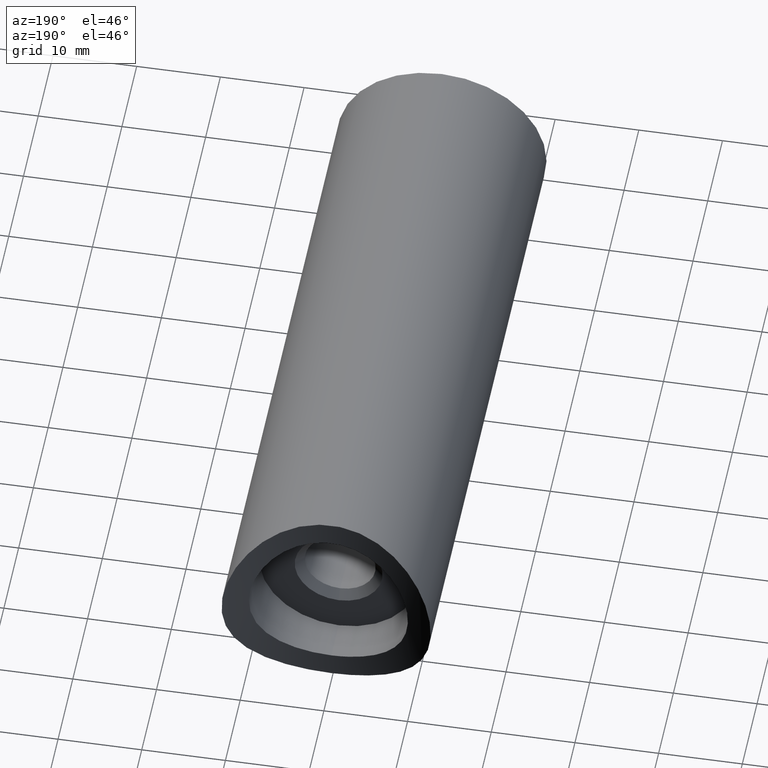
[diagram: clean part render]
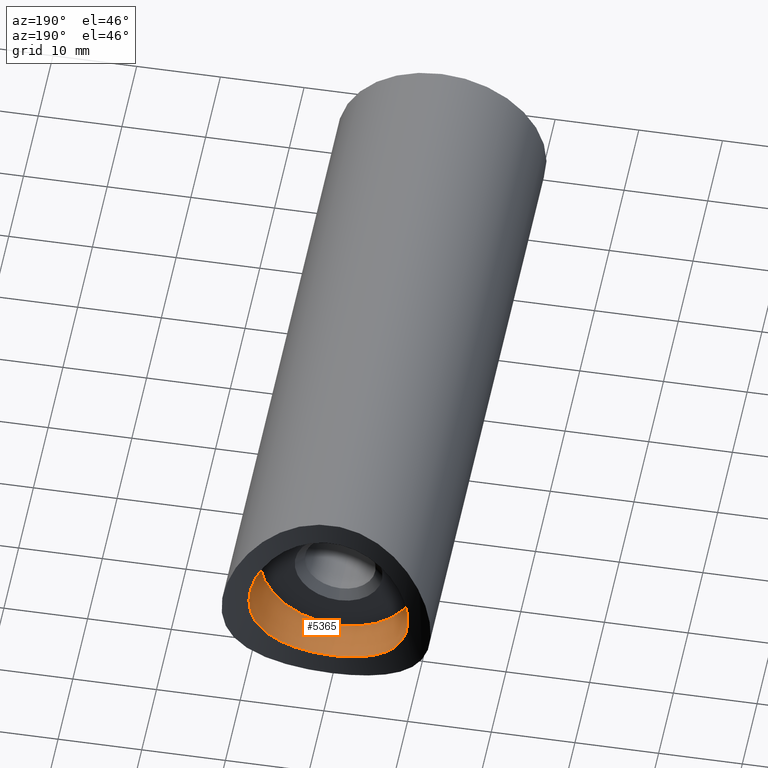
[diagram: same view with one face highlighted and labeled with its STEP entity id]
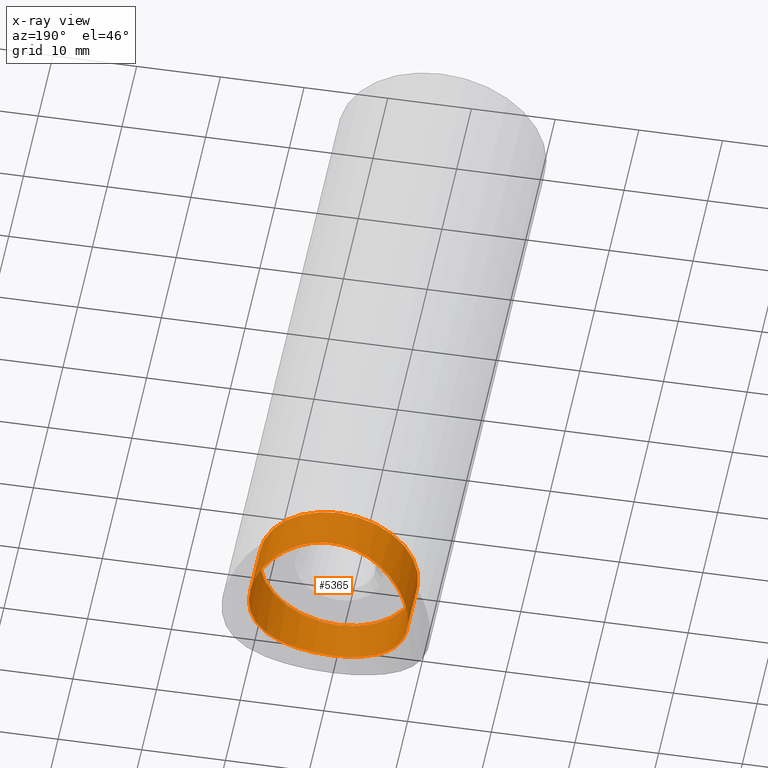
[diagram: x-ray of the same camera — body ghosted, the highlighted face saturated]
A machine part, auxiliary view. The second image highlights one B-rep face of the part: STEP entity #5365.
The next image is the same camera in x-ray: the body ghosted, the highlighted face saturated — about 0% of this face is hidden behind the body in this view.
In plain terms, the highlighted cylindrical surface (bore or boss wall) has radius 9.5 mm, axis along (-0, -1, -0).
Its self-contained STEP definition (entity closure, byte-faithful):
#36 = CARTESIAN_POINT ( 'NONE',  ( 9.193056664637765607, 76.81778522380197671, 2.475342058951142121 ) ) ;
#81 = CARTESIAN_POINT ( 'NONE',  ( -8.510542519066493838, 76.54872143713436117, 4.232847530208183606 ) ) ;
#130 = CARTESIAN_POINT ( 'NONE',  ( 9.499214769619728216, 76.94667998977251955, -0.6384542957926189199 ) ) ;
#151 = ORIENTED_EDGE ( 'NONE', *, *, #14870, .T. ) ;
#189 = CARTESIAN_POINT ( 'NONE',  ( -4.218238365120572375, 75.36961082937598633, 8.517827586905390547 ) ) ;
#292 = CARTESIAN_POINT ( 'NONE',  ( -1.572090179147043632, 75.04927085023612676, -9.374213592972790110 ) ) ;
#685 = CIRCLE ( 'NONE', #8659, 9.500000000000000000 ) ;
#1136 = CARTESIAN_POINT ( 'NONE',  ( 9.437043816654821171, 76.91978093354752843, -1.258921852254846430 ) ) ;
#1182 = CARTESIAN_POINT ( 'NONE',  ( -8.216106106290522959, 76.44003022689670956, 4.779323449297377735 ) ) ;
#1237 = CARTESIAN_POINT ( 'NONE',  ( 3.077021658739412580, 75.19492368750546518, -8.993352366064405246 ) ) ;
#1290 = CARTESIAN_POINT ( 'NONE',  ( 9.376693620057871215, 76.89456204277402662, 1.557247264431473432 ) ) ;
#1339 = CARTESIAN_POINT ( 'NONE',  ( 3.093813615829786645, 75.19203433111398738, 9.003380680992760787 ) ) ;
#1386 = CARTESIAN_POINT ( 'NONE',  ( -9.500662680517631742, 76.94729950751319336, -0.6160530832159377690 ) ) ;
#1495 = CARTESIAN_POINT ( 'NONE',  ( -0.6353278872126894017, 75.00631901483400554, -9.483969120928300356 ) ) ;
#2044 = CARTESIAN_POINT ( 'NONE',  ( 2.174000736269224632, 75.09609725218493281, -9.253158087516537122 ) ) ;
#2297 = CARTESIAN_POINT ( 'NONE',  ( 8.884871832431230132, 76.69342269747139085, -3.377035680665607220 ) ) ;
#2343 = CARTESIAN_POINT ( 'NONE',  ( 6.502903001252344772, 75.89090259929585613, -6.932254495519477366 ) ) ;
#2395 = CARTESIAN_POINT ( 'NONE',  ( 8.527852376057261097, 76.55434819827355852, -4.231666778120470873 ) ) ;
#2442 = CARTESIAN_POINT ( 'NONE',  ( -3.934444486296392540, 75.32087562434655581, 8.652572895259925900 ) ) ;
#2502 = CARTESIAN_POINT ( 'NONE',  ( 9.251696904950398093, 76.84230876325581505, -2.180429874088628761 ) ) ;
#2552 = CARTESIAN_POINT ( 'NONE',  ( -7.161008188894703252, 76.08167090256068832, -6.272936677098543967 ) ) ;
#2603 = CARTESIAN_POINT ( 'NONE',  ( -9.255283127220218731, 76.84379706405243837, -2.165420669590635061 ) ) ;
#3439 = CARTESIAN_POINT ( 'NONE',  ( 5.044969069780093740, 75.53136713757005793, 8.055662908764864127 ) ) ;
#3484 = CARTESIAN_POINT ( 'NONE',  ( 8.236572966326859202, 76.44503504265567528, -4.774411568650105409 ) ) ;
#3540 = CARTESIAN_POINT ( 'NONE',  ( -9.005327352623405446, 76.74034258593999880, 3.088788311459570668 ) ) ;
#3596 = CARTESIAN_POINT ( 'NONE',  ( 1.260343601547155412, 75.03089121637468395, 9.421238629142054677 ) ) ;
#3649 = CARTESIAN_POINT ( 'NONE',  ( 6.938676291945663266, 76.01715648012773840, 6.496099429218702426 ) ) ;
#3759 = CARTESIAN_POINT ( 'NONE',  ( -6.508174638112111055, 75.89236685973550323, -6.927380896768315921 ) ) ;
#3908 = CARTESIAN_POINT ( 'NONE',  ( -5.800068759184891398, 75.70554385703265154, -7.530264462451012442 ) ) ;
#4057 = AXIS2_PLACEMENT_3D ( 'NONE', #14377, #13259, #6480 ) ;
#4493 = CARTESIAN_POINT ( 'NONE',  ( 0.000000000000000000, 75.00000000000000000, -9.500000000000000000 ) ) ;
#4604 = CARTESIAN_POINT ( 'NONE',  ( -2.477368257026574927, 75.11946122093324618, 9.192778334958587649 ) ) ;
#4655 = CARTESIAN_POINT ( 'NONE',  ( -5.799092914521390085, 75.70073719207624663, 7.549815552955290165 ) ) ;
#4703 = CARTESIAN_POINT ( 'NONE',  ( 9.485152732290417887, 76.94064353638327702, 0.6178967879999681667 ) ) ;
#4745 = CARTESIAN_POINT ( 'NONE',  ( 2.500404097984892271, 75.12179392227974972, 9.186700151532587455 ) ) ;
#4800 = CARTESIAN_POINT ( 'NONE',  ( -0.3171744019907673517, 75.00000000000004263, -9.500000000000001776 ) ) ;
#4861 = CARTESIAN_POINT ( 'NONE',  ( -8.996200247582851972, 76.73793805095576204, -3.068502061978064521 ) ) ;
#4910 = CARTESIAN_POINT ( 'NONE',  ( -5.553079317562379380, 75.64565565303477968, -7.714129740837600835 ) ) ;
#4954 = CARTESIAN_POINT ( 'NONE',  ( -1.262451520650291092, 75.03097868495191847, -9.421015230271068575 ) ) ;
#5365 = ADVANCED_FACE ( 'NONE', ( #13364, #10313 ), #9602, .F. ) ;
#5446 = CARTESIAN_POINT ( 'NONE',  ( 1.256893714816299523, 75.02493451614628839, -9.437111494792404187 ) ) ;
#5683 = CARTESIAN_POINT ( 'NONE',  ( 4.776994683298587674, 75.47553062007276026, 8.217483131435335153 ) ) ;
#5730 = CARTESIAN_POINT ( 'NONE',  ( 7.540132609630790128, 76.20634207888515732, 5.787255511451562029 ) ) ;
#5773 = CARTESIAN_POINT ( 'NONE',  ( -8.056722323660352458, 76.38281855678741294, 5.043165203084824633 ) ) ;
#5822 = CARTESIAN_POINT ( 'NONE',  ( -9.434962940845293744, 76.91889607188139166, 1.273160634128879698 ) ) ;
#5879 = CARTESIAN_POINT ( 'NONE',  ( 8.237217831319831873, 76.44533245457874671, 4.772522679604951357 ) ) ;
#5943 = VERTEX_POINT ( 'NONE', #4493 ) ;
#6134 = CARTESIAN_POINT ( 'NONE',  ( -6.776263578034402713E-16, 75.00000000000002842, -9.500000000000001776 ) ) ;
#6480 = DIRECTION ( 'NONE',  ( 0.000000000000000000, 0.000000000000000000, -1.000000000000000000 ) ) ;
#6840 = CARTESIAN_POINT ( 'NONE',  ( -9.499326505657204933, 76.94672779820564301, 0.6363243742295972005 ) ) ;
#6887 = CARTESIAN_POINT ( 'NONE',  ( 6.275586754272982404, 75.82833350539628725, -7.138791081410559514 ) ) ;
#6932 = CARTESIAN_POINT ( 'NONE',  ( -6.275471604676970294, 75.82512488083456503, 7.159155207153961697 ) ) ;
#6981 = CARTESIAN_POINT ( 'NONE',  ( 5.798810078399073475, 75.70523685616372234, -7.531210320333029173 ) ) ;
#7030 = CARTESIAN_POINT ( 'NONE',  ( 9.423099453564327987, 76.91424425455466007, 1.247042695232497334 ) ) ;
#7079 = CARTESIAN_POINT ( 'NONE',  ( -8.891121034785888000, 76.69589652520495804, -3.360649652997342418 ) ) ;
#7132 = CARTESIAN_POINT ( 'NONE',  ( -7.550169701924356325, 76.20768821133580673, -5.798833281063219935 ) ) ;
#7887 = CARTESIAN_POINT ( 'NONE',  ( -6.776263578034402713E-16, 75.00000000000002842, -9.500000000000001776 ) ) ;
#7928 = CARTESIAN_POINT ( 'NONE',  ( 0.6343488039815238233, 75.00000000000000000, -9.499999999999998224 ) ) ;
#7973 = CARTESIAN_POINT ( 'NONE',  ( 9.500381635804100000, 76.94717925683632131, 0.3015378183090448583 ) ) ;
#8022 = CARTESIAN_POINT ( 'NONE',  ( 4.777492450567414117, 75.47141337804067973, -8.234587001808485240 ) ) ;
#8068 = CARTESIAN_POINT ( 'NONE',  ( -8.645799211394619377, 76.60029495687116707, 3.949277084034159113 ) ) ;
#8118 = CARTESIAN_POINT ( 'NONE',  ( -0.6128182607090354450, 75.00574505691896832, 9.485427861461763754 ) ) ;
#8170 = CARTESIAN_POINT ( 'NONE',  ( -7.542979384534634235, 76.20534345693084788, 5.807806941451851834 ) ) ;
#8267 = CARTESIAN_POINT ( 'NONE',  ( -9.178132630791344226, 76.81182592256007524, -2.471680644941140148 ) ) ;
#8276 = EDGE_CURVE ( 'NONE', #5943, #5943, #14009, .T. ) ;
#8319 = CARTESIAN_POINT ( 'NONE',  ( -3.378324793188790309, 75.23567709680904159, -8.884536148079378748 ) ) ;
#8424 = CARTESIAN_POINT ( 'NONE',  ( -9.440023145085600476, 76.92104852317645225, -1.238229698173417104 ) ) ;
#8541 = EDGE_LOOP ( 'NONE', ( #151 ) ) ;
#8659 = AXIS2_PLACEMENT_3D ( 'NONE', #10270, #10364, #9071 ) ;
#8679 = VERTEX_POINT ( 'NONE', #9165 ) ;
#9071 = DIRECTION ( 'NONE',  ( 0.000000000000000000, 0.000000000000000000, -1.000000000000000000 ) ) ;
#9144 = CARTESIAN_POINT ( 'NONE',  ( 5.548325332916294705, 75.64451264848283074, -7.717629189169092463 ) ) ;
#9165 = CARTESIAN_POINT ( 'NONE',  ( 0.000000000000000000, 70.00000000000000000, -9.500000000000000000 ) ) ;
#9192 = CARTESIAN_POINT ( 'NONE',  ( -4.766860932096791181, 75.47348250131881287, 8.223378779994929388 ) ) ;
#9237 = CARTESIAN_POINT ( 'NONE',  ( 7.544457634476889218, 76.20576920126886478, -5.806659888272249326 ) ) ;
#9291 = CARTESIAN_POINT ( 'NONE',  ( 9.011774073292219356, 76.74291890696503060, 3.071009793062422499 ) ) ;
#9336 = CARTESIAN_POINT ( 'NONE',  ( 9.173829633520961480, 76.81005503092798392, -2.487681751522926810 ) ) ;
#9494 = CARTESIAN_POINT ( 'NONE',  ( -4.244949404084845668, 75.36881882954118339, -8.521892304879832736 ) ) ;
#9602 = CYLINDRICAL_SURFACE ( 'NONE', #4057, 9.500000000000000000 ) ;
#10270 = CARTESIAN_POINT ( 'NONE',  ( 0.000000000000000000, 70.00000000000000000, 0.000000000000000000 ) ) ;
#10297 = CARTESIAN_POINT ( 'NONE',  ( 5.813957471726465265, 75.70439223781714588, 7.538538968242256999 ) ) ;
#10313 = FACE_OUTER_BOUND ( 'NONE', #8541, .T. ) ;
#10325 = ORIENTED_EDGE ( 'NONE', *, *, #8276, .F. ) ;
#10341 = CARTESIAN_POINT ( 'NONE',  ( 7.147168841551586382, 76.08090777420343898, 6.266091578966769937 ) ) ;
#10364 = DIRECTION ( 'NONE',  ( 0.000000000000000000, -1.000000000000000000, 0.000000000000000000 ) ) ;
#10393 = CARTESIAN_POINT ( 'NONE',  ( -1.238753796529346918, 75.02975783685548095, 9.424137995978076887 ) ) ;
#10444 = CARTESIAN_POINT ( 'NONE',  ( 8.529957691302318068, 76.55510728411171328, 4.228829020159070140 ) ) ;
#10490 = CARTESIAN_POINT ( 'NONE',  ( 6.286814923218995155, 75.82826828645842454, 7.148713453203204615 ) ) ;
#10597 = CARTESIAN_POINT ( 'NONE',  ( -2.183789432479960269, 75.09698196075517274, -9.250860053672594674 ) ) ;
#10750 = CARTESIAN_POINT ( 'NONE',  ( -8.653247290357750643, 76.60315748394174307, -3.932850197670828329 ) ) ;
#11424 = CARTESIAN_POINT ( 'NONE',  ( 0.6367274069740974651, 75.00637850114738114, 9.483817578424565298 ) ) ;
#11471 = CARTESIAN_POINT ( 'NONE',  ( 1.573465314519190139, 75.04932036444496646, 9.374090728484144819 ) ) ;
#11521 = CARTESIAN_POINT ( 'NONE',  ( -9.187328606542141785, 76.81541917489053617, 2.496488888585727928 ) ) ;
#11578 = CARTESIAN_POINT ( 'NONE',  ( 8.990454928467288553, 76.73562935201549351, -3.085357486730781140 ) ) ;
#11630 = CARTESIAN_POINT ( 'NONE',  ( 3.373369171928280341, 75.23500148463070047, -8.886341893753193943 ) ) ;
#11734 = CARTESIAN_POINT ( 'NONE',  ( -2.485849473620656891, 75.12640256134531569, -9.174306299042532586 ) ) ;
#11834 = CARTESIAN_POINT ( 'NONE',  ( -6.277639297956278952, 75.82888153849503965, -7.137010952105947048 ) ) ;
#12552 = CARTESIAN_POINT ( 'NONE',  ( 4.229353381389529432, 75.37159070499657787, 8.512301521622470446 ) ) ;
#12602 = CARTESIAN_POINT ( 'NONE',  ( 0.01253060823600819947, 74.99394442722088172, 9.515361503100100649 ) ) ;
#12644 = CARTESIAN_POINT ( 'NONE',  ( -1.553460638403702188, 75.04803593235152448, 9.377387258404230153 ) ) ;
#12697 = CARTESIAN_POINT ( 'NONE',  ( 2.476898393227372708, 75.12545592991585863, -9.176787205671455894 ) ) ;
#12749 = CARTESIAN_POINT ( 'NONE',  ( 7.723775209362810479, 76.26772316830307830, 5.539673194081188967 ) ) ;
#12797 = CARTESIAN_POINT ( 'NONE',  ( -4.787628771710838116, 75.47354158460973395, -8.228399662555501592 ) ) ;
#12848 = CARTESIAN_POINT ( 'NONE',  ( -3.082449562587944225, 75.19564369067417431, -8.991431942035323033 ) ) ;
#12950 = CARTESIAN_POINT ( 'NONE',  ( -8.226763975962539277, 76.44389147346070956, -4.760989118344682858 ) ) ;
#12999 = CARTESIAN_POINT ( 'NONE',  ( -8.520452612577111395, 76.55245815996788394, -4.212902820861089026 ) ) ;
#13126 = EDGE_LOOP ( 'NONE', ( #10325 ) ) ;
#13259 = DIRECTION ( 'NONE',  ( -0.000000000000000000, -1.000000000000000000, -0.000000000000000000 ) ) ;
#13364 = FACE_OUTER_BOUND ( 'NONE', #13126, .T. ) ;
#13704 = CARTESIAN_POINT ( 'NONE',  ( 3.949770568916404656, 75.32343629741849611, 8.645516123807395203 ) ) ;
#13749 = CARTESIAN_POINT ( 'NONE',  ( -7.153422303367714896, 76.07924161334415203, 6.282005769728961297 ) ) ;
#13800 = CARTESIAN_POINT ( 'NONE',  ( -3.072267678048729245, 75.18916197169116344, 9.011029675267776540 ) ) ;
#13852 = CARTESIAN_POINT ( 'NONE',  ( -5.031704170482030669, 75.52854408895726124, 8.063916636441513575 ) ) ;
#13901 = CARTESIAN_POINT ( 'NONE',  ( 4.234205104439967116, 75.36699973984651990, -8.526914707248506531 ) ) ;
#14009 = B_SPLINE_CURVE_WITH_KNOTS ( 'NONE', 3,
 ( #7887, #7928, #5446, #2044, #12697, #1237, #11630, #13901, #8022, #9144, #6981, #6887, #2343, #14866, #9237, #3484, #2395, #2297, #11578, #9336, #2502, #1136, #130, #7973, #4703, #7030, #1290, #36, #9291, #10444, #5879, #12749, #5730, #10341, #3649, #10490, #10297, #3439, #5683, #12552, #13704, #1339, #4745, #11471, #3596, #11424, #12602, #8118, #10393, #12644, #4604, #13800, #2442, #189, #9192, #13852, #4655, #6932, #13749, #8170, #5773, #1182, #81, #8068, #3540, #11521, #5822, #6840, #1386, #8424, #2603, #8267, #4861, #7079, #10750, #12999, #12950, #14012, #7132, #2552, #3759, #11834, #3908, #4910, #12797, #9494, #8319, #12848, #11734, #10597, #292, #4954, #1495, #4800, #6134 ),
 .UNSPECIFIED., .T., .F.,
 ( 4, 2, 2, 2, 2, 2, 2, 2, 2, 2, 2, 2, 2, 2, 2, 2, 2, 2, 2, 2, 2, 2, 2, 1, 2, 2, 2, 2, 2, 2, 2, 2, 2, 2, 2, 2, 2, 2, 2, 2, 2, 2, 2, 2, 2, 2, 2, 4 ),
 ( 0.000000000000000000, 0.001874720630790725501, 0.002812080946186088903, 0.003749441261581452738, 0.005624161892372179540, 0.006561522207767546411, 0.007498882523162912414, 0.009373603153953653094, 0.01124832378474439204, 0.01218568410013976672, 0.01312304441553513966, 0.01499776504632588034, 0.01593512536172125502, 0.01687248567711662622, 0.01874720630790737211, 0.02062192693869811452, 0.02155928725409348920, 0.02249664756948886041, 0.02437136820027962017, 0.02530872851567499485, 0.02624608883107037299, 0.02812080946186111541, 0.02905816977725648315, 0.02999553009265185435, 0.03093289040804722556, 0.03187025072344259330, 0.03374497135423333571, 0.03468233166962871039, 0.03561969198502407813, 0.03749441261581482054, 0.03936913324660556990, 0.04030649356200094457, 0.04124385387739630537, 0.04311857450818705473, 0.04499329513897779714, 0.04686801576976854650, 0.04780537608516392117, 0.04874273640055929585, 0.04968009671595466359, 0.05061745703135003133, 0.05249217766214076680, 0.05342953797753614148, 0.05436689829293150228, 0.05624161892372225163, 0.05717897923911762631, 0.05811633955451298711, 0.05905369986990836179, 0.05999106018530373646 ),
 .UNSPECIFIED. ) ;
#14012 = CARTESIAN_POINT ( 'NONE',  ( -8.065665250542707554, 76.38598009467085603, -5.028958794178328695 ) ) ;
#14377 = CARTESIAN_POINT ( 'NONE',  ( 0.000000000000000000, 99.15000000000000568, 0.000000000000000000 ) ) ;
#14866 = CARTESIAN_POINT ( 'NONE',  ( 7.152746981666465054, 76.07914938774872837, -6.282022759720639726 ) ) ;
#14870 = EDGE_CURVE ( 'NONE', #8679, #8679, #685, .T. ) ;